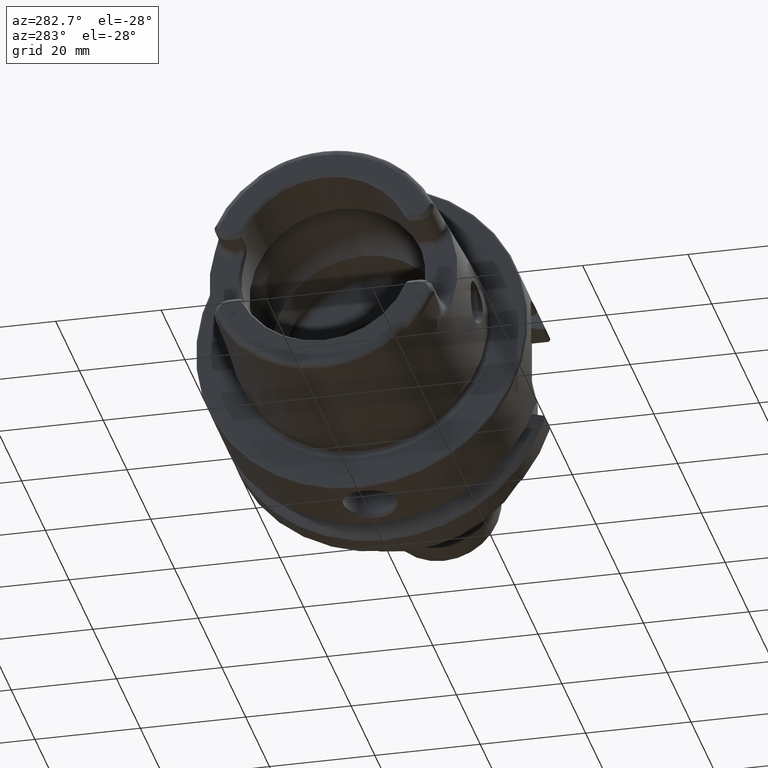
[diagram: clean part render]
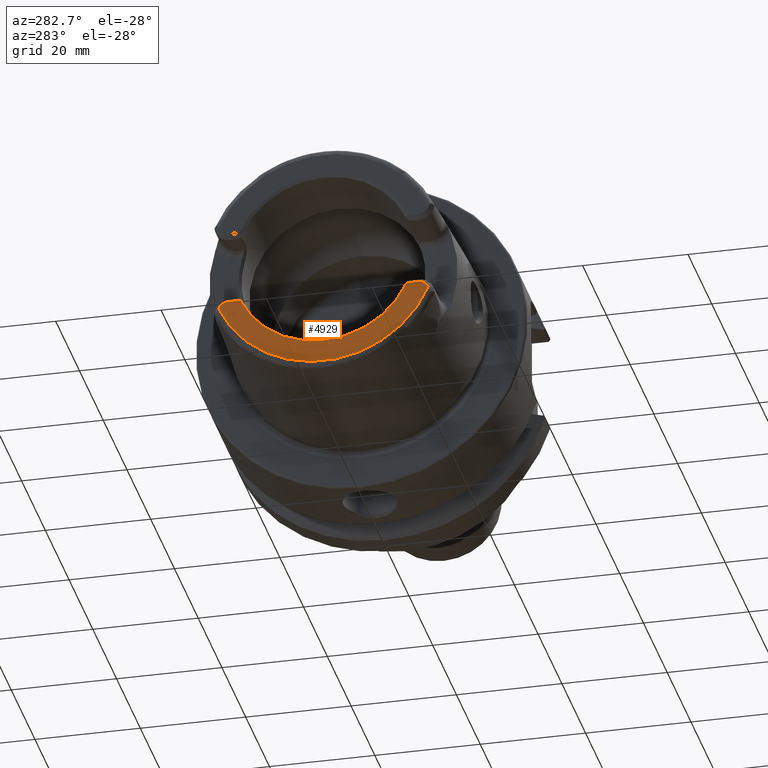
[diagram: same view with one face highlighted and labeled with its STEP entity id]
A machine part, auxiliary view. The second image highlights one B-rep face of the part: STEP entity #4929.
In plain terms, the highlighted planar face has unit normal (1, 0, 0).
Its self-contained STEP definition (entity closure, byte-faithful):
#88=CARTESIAN_POINT('',(-3.2E1,0.E0,0.E0));
#89=DIRECTION('',(-1.E0,0.E0,0.E0));
#90=DIRECTION('',(0.E0,9.224287428258E-1,-3.861673399044E-1));
#91=AXIS2_PLACEMENT_3D('',#88,#89,#90);
#1503=DIRECTION('',(0.E0,1.E0,0.E0));
#1504=VECTOR('',#1503,2.213010809741E0);
#1505=CARTESIAN_POINT('',(-3.2E1,1.577698919026E1,-7.07E0));
#1506=LINE('',#1505,#1504);
#1507=DIRECTION('',(0.E0,-1.E0,0.E0));
#1508=VECTOR('',#1507,2.213010809741E0);
#1509=CARTESIAN_POINT('',(-3.2E1,-1.577698919026E1,-7.07E0));
#1510=LINE('',#1509,#1508);
#1511=CARTESIAN_POINT('',(-3.2E1,-1.799E1,-9.15E0));
#1512=DIRECTION('',(1.E0,0.E0,0.E0));
#1513=DIRECTION('',(0.E0,0.E0,1.E0));
#1514=AXIS2_PLACEMENT_3D('',#1511,#1512,#1513);
#1516=CARTESIAN_POINT('',(-3.2E1,1.799E1,-9.15E0));
#1517=DIRECTION('',(-1.E0,0.E0,0.E0));
#1518=DIRECTION('',(0.E0,0.E0,1.E0));
#1519=AXIS2_PLACEMENT_3D('',#1516,#1517,#1518);
#1887=CARTESIAN_POINT('',(-3.2E1,0.E0,-3.446132268436E-13));
#1888=DIRECTION('',(1.E0,0.E0,0.E0));
#1889=DIRECTION('',(0.E0,-9.125620712653E-1,-4.089382179351E-1));
#1890=AXIS2_PLACEMENT_3D('',#1887,#1888,#1889);
#2989=CARTESIAN_POINT('',(-3.2E1,-1.799E1,-7.07E0));
#2991=VERTEX_POINT('',#2989);
#2992=CARTESIAN_POINT('',(-3.2E1,-1.577698919026E1,-7.07E0));
#2993=VERTEX_POINT('',#2992);
#2994=CARTESIAN_POINT('',(-3.2E1,-1.990238974402E1,-8.331974653830E0));
#2995=VERTEX_POINT('',#2994);
#3007=CARTESIAN_POINT('',(-3.2E1,1.799E1,-7.07E0));
#3009=VERTEX_POINT('',#3007);
#3020=CARTESIAN_POINT('',(-3.2E1,1.577698919026E1,-7.07E0));
#3021=VERTEX_POINT('',#3020);
#3022=CARTESIAN_POINT('',(-3.2E1,1.990238974402E1,-8.331974653830E0));
#3023=VERTEX_POINT('',#3022);
#4915=CARTESIAN_POINT('',(-3.2E1,0.E0,0.E0));
#4916=DIRECTION('',(1.E0,0.E0,0.E0));
#4917=DIRECTION('',(0.E0,0.E0,1.E0));
#4918=AXIS2_PLACEMENT_3D('',#4915,#4916,#4917);
#4919=PLANE('',#4918);
#4920=ORIENTED_EDGE('',*,*,#3348,.F.);
#4922=ORIENTED_EDGE('',*,*,#4921,.F.);
#4923=ORIENTED_EDGE('',*,*,#4884,.T.);
#4924=ORIENTED_EDGE('',*,*,#4873,.T.);
#4925=ORIENTED_EDGE('',*,*,#3307,.F.);
#4926=ORIENTED_EDGE('',*,*,#3328,.F.);
#4927=EDGE_LOOP('',(#4920,#4922,#4923,#4924,#4925,#4926));
#4928=FACE_OUTER_BOUND('',#4927,.F.);
#4929=ADVANCED_FACE('',(#4928),#4919,.F.);
#92=CIRCLE('',#91,2.157607283902E1);
#1515=CIRCLE('',#1514,2.08E0);
#1520=CIRCLE('',#1519,2.08E0);
#1891=CIRCLE('',#1890,1.728867513459E1);
#3307=EDGE_CURVE('',#3023,#2995,#92,.T.);
#3328=EDGE_CURVE('',#3009,#3023,#1520,.T.);
#3348=EDGE_CURVE('',#3021,#3009,#1506,.T.);
#4873=EDGE_CURVE('',#2991,#2995,#1515,.T.);
#4884=EDGE_CURVE('',#2993,#2991,#1510,.T.);
#4921=EDGE_CURVE('',#2993,#3021,#1891,.T.);